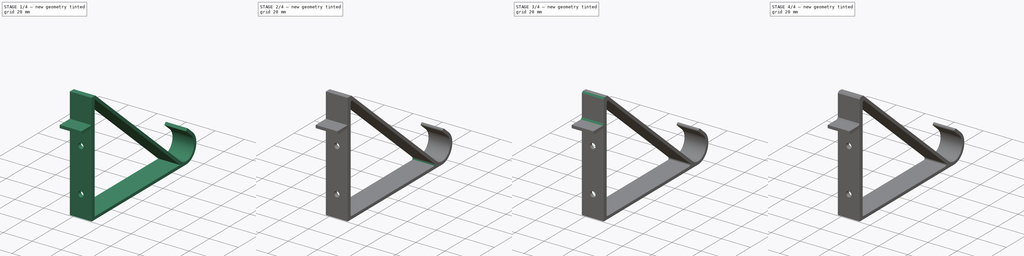
[diagram: build sequence overview — one tinted view per stage of 4, left to right]
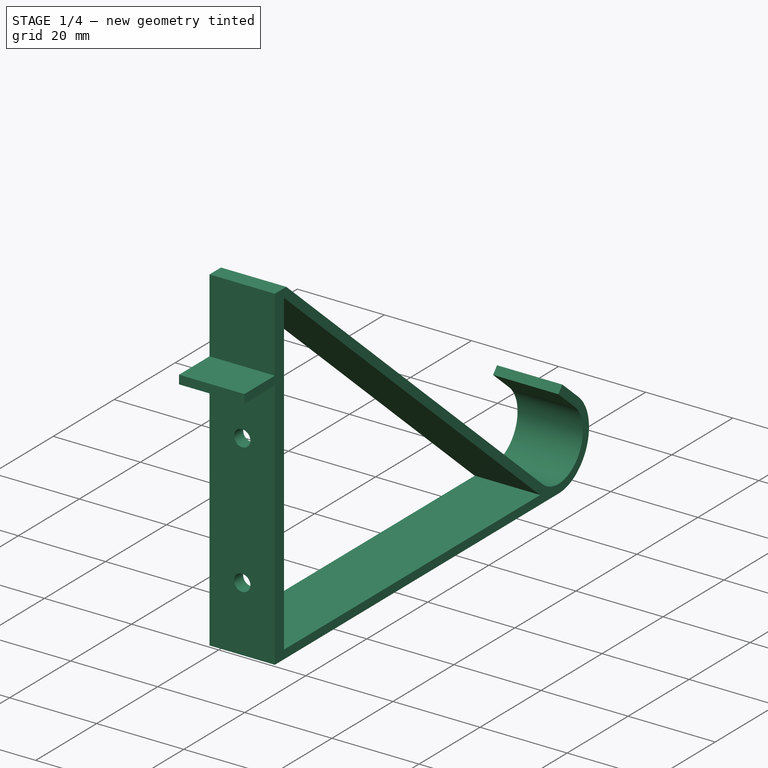
[diagram: stage 1 of 4 — iso view after this stage's code; geometry added in this stage tinted green]
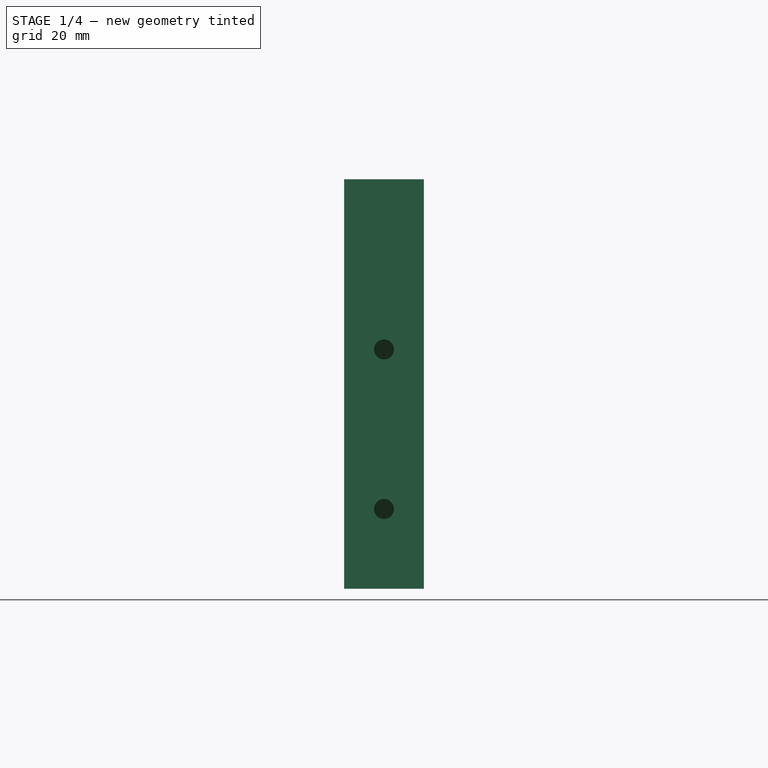
[diagram: stage 1 of 4 — front view after this stage's code; geometry added in this stage tinted green]
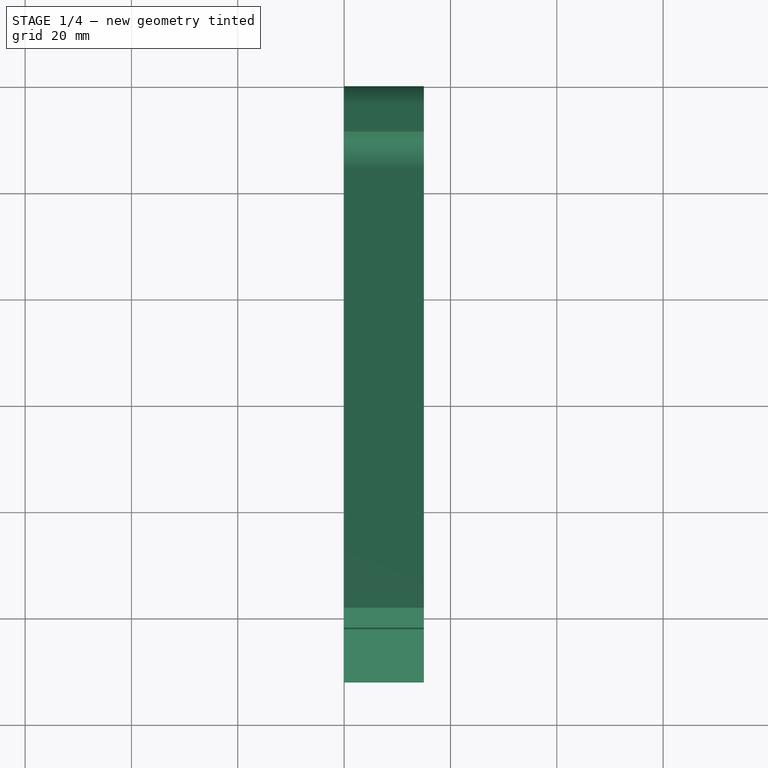
[diagram: stage 1 of 4 — top view after this stage's code; geometry added in this stage tinted green]
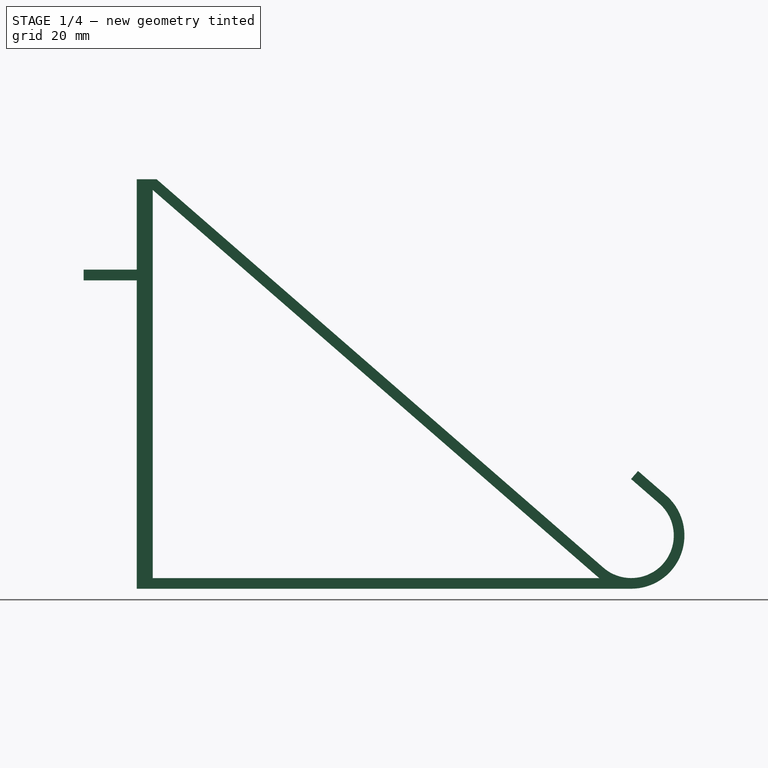
[diagram: stage 1 of 4 — right view after this stage's code; geometry added in this stage tinted green]
FCSTD DOCUMENT  (FreeCAD 0.21R33771 (Git))
Label: wireless-keyboard-holder
License: All rights reserved
LicenseURL: http://en.wikipedia.org/wiki/All_rights_reserved
objects: PartDesign::Chamfer×4, PartDesign::Fillet×3, Sketcher::SketchObject×2, PartDesign::Pad×1, PartDesign::Pocket×1, PartDesign::Body×1
note: 21 computed .brp shape members not serialized (recipe doc carries the construction recipe); baked Part::Feature solids carry a one-line shape summary decoded from their .brp

FEATURE [Sketcher::SketchObject] Sketch
  FullyConstrained = false
  MapMode = 5
  Placement = pos=(0,0,0) rot=(0.57735,0.57735,0.57735;2.0944rad)
  Support = -> [YZ_Plane]
  sketch-geometry (26):
    g0: LineSegment StartX=-3 StartY=58 StartZ=0 EndX=-3 EndY=0 EndZ=0
    g1: LineSegment StartX=-3 StartY=0 StartZ=0 EndX=0 EndY=0 EndZ=0
    g2: LineSegment StartX=-3 StartY=58 StartZ=0 EndX=-13 EndY=58 EndZ=0
    g3: LineSegment StartX=-13 StartY=60 StartZ=0 EndX=-3 EndY=60 EndZ=0
    g4: LineSegment StartX=-13 StartY=58 StartZ=0 EndX=-13 EndY=60 EndZ=0
    g5: LineSegment StartX=0 StartY=0 StartZ=0 EndX=0 EndY=75 EndZ=0
    g6: LineSegment StartX=0.747881 StartY=77 StartZ=0 EndX=84.7509 EndY=3.96284 EndZ=0
    g7: LineSegment StartX=89.9665 StartY=20.6301 StartZ=0 EndX=95.249 EndY=16.0372 EndZ=0
    g8: ArcOfCircle CenterX=90 CenterY=10 CenterZ=0 NormalX=0 NormalY=0 NormalZ=1 AngleXU=0 Radius=8 StartAngle=3.99671 EndAngle=7.1383
    g9: GeomPoint X=96.0371 Y=4.75094 Z=0
    g10: LineSegment StartX=90 StartY=10 StartZ=0 EndX=96.0371 EndY=4.75094 EndZ=0
    g11: LineSegment StartX=96.0371 StartY=4.75094 StartZ=0 EndX=101.286 EndY=10.7881 EndZ=0
    g12: LineSegment StartX=95.249 StartY=16.0372 StartZ=0 EndX=101.286 EndY=10.7881 EndZ=0
    g13: LineSegment StartX=89.9665 StartY=20.6301 StartZ=0 EndX=91.2788 EndY=22.1394 EndZ=0
    g14: ArcOfCircle CenterX=90 CenterY=10 CenterZ=0 NormalX=0 NormalY=0 NormalZ=1 AngleXU=0 Radius=10 StartAngle=3.99671 EndAngle=7.1383
    g15: LineSegment StartX=91.2788 StartY=22.1394 StartZ=0 EndX=96.5613 EndY=17.5465 EndZ=0
    g16: LineSegment StartX=83.4386 StartY=2.45355 StartZ=0 EndX=0 EndY=75 EndZ=0
    g17: LineSegment StartX=0 StartY=0 StartZ=0 EndX=150 EndY=0 EndZ=0
    g18: LineSegment StartX=-3 StartY=60 StartZ=0 EndX=-3 EndY=77 EndZ=0
    g19: LineSegment StartX=-3 StartY=77 StartZ=0 EndX=0.747881 EndY=77 EndZ=0
    g20: GeomPoint X=90 Y=5.78826e-11 Z=0
    g21: LineSegment StartX=0 StartY=5.78826e-11 StartZ=0 EndX=90 EndY=5.78826e-11 EndZ=0
    g22: LineSegment StartX=0 StartY=75 StartZ=0 EndX=0 EndY=2 EndZ=0
    g23: LineSegment StartX=0 StartY=2 StartZ=0 EndX=84 EndY=2 EndZ=0
    g24: ArcOfCircle CenterX=90 CenterY=10 CenterZ=0 NormalX=0 NormalY=0 NormalZ=1 AngleXU=0 Radius=10 StartAngle=4.71239 EndAngle=7.1383
    g25: LineSegment StartX=83.4386 StartY=2.45355 StartZ=0 EndX=84 EndY=2 EndZ=0
  constraints (66):
    c: Vertical(g0)
    c: Distance(g0) = 58
    c: Coincident(g1,g0)
    c: Horizontal(g1)
    c: Coincident(g2,g0)
    c: Horizontal(g2)
    c: Horizontal(g3)
    c: Coincident(g4,g2)
    c: Coincident(g4,g3)
    c: Vertical(g4)
    c: Distance(g4) = 2
    c: Coincident(g5,g1)
    c: Vertical(g5)
    c: Parallel(g6,g7)
    c: Tangent(g8,g7) = 1.5708
    c: Tangent(g8,g6) = -1.5708
    c: Distance(g6,g7) = 16
    c: PointOnObject(g9,g8)
    c: Coincident(g10,g8)
    c: Coincident(g10,g9)
    c: Parallel(g10,g7)
    c: Coincident(g11,g9)
    c: Tangent(g11,g8)
    c: Coincident(g12,g7)
    c: Coincident(g12,g11)
    c: Tangent(g12,g8)
    c: Distance(g11,g7) = 15
    c: Coincident(g13,g7)
    c: Perpendicular(g7,g13)
    c: Distance(g13) = 2
    c: Coincident(g14,g8)
    c: Coincident(g15,g13)
    c: Parallel(g15,g7)
    c: Tangent(g15,g14) = 1.5708
    c: Parallel(g16,g6)
    c: Tangent(g16,g14) = 1.5708
    c: Coincident(g17,g1)
    c: Horizontal(g17)
    c: Tangent(g17,g14)
    c: Coincident(g16,g5)
    c: Distance(g5) = 75
    c: Distance(g17) = 150
    c: Distance(g2) = 10
    c: Vertical(g3,g0)
    c: Coincident(g18,g3)
    c: Vertical(g18)
    c: Coincident(g19,g18)
    c: Horizontal(g19)
    c: DistanceX(g1,g1) = 3
    c: DistanceY(g5,g18) = 2
    c: Coincident(g1,g-1)
    c: Distance(g20,g1) = 90
    c: Coincident(g19,g6)
    c: Coincident(g22,g16)
    c: PointOnObject(g22,g5)
    c: Coincident(g23,g22)
    c: Horizontal(g23)
    c: Distance(g22,g1) = 2
    c: Coincident(g21,g20)
    c: Coincident(g24,g8)
    c: Coincident(g24,g15)
    c: PointOnObject(g23,g14)
    c: Coincident(g25,g16)
    c: Coincident(g25,g23)
    c: Coincident(g21,g24)
    c: Horizontal(g21)
FEATURE [PartDesign::Pad] Pad
  Direction = (1,-2e-16,3e-16)
  Length = 15
  Length2 = 10
  Placement = pos=(0,0,0) rot=(1,1,1;2.0944rad)
  Profile = -> Sketch
  ReferenceAxis = -> Sketch [N_Axis]
  Type = 0
FEATURE [Sketcher::SketchObject] Sketch001
  FullyConstrained = true
  MapMode = 5
  Placement = pos=(0,0,0) rot=(1,0,0;1.5708rad)
  Support = -> [XZ_Plane]
  sketch-geometry (4):
    g0: GeomPoint X=7.5 Y=15 Z=0
    g1: GeomPoint X=7.5 Y=45 Z=0
    g2: Circle CenterX=7.5 CenterY=15 CenterZ=0 NormalX=0 NormalY=0 NormalZ=1 AngleXU=0 Radius=1.875
    g3: Circle CenterX=7.5 CenterY=45 CenterZ=0 NormalX=0 NormalY=0 NormalZ=1 AngleXU=0 Radius=1.875
  constraints (8):
    c: DistanceX(g-1,g0) = 7.5
    c: DistanceY(g-1,g0) = 15
    c: Vertical(g1,g0)
    c: DistanceY(g-1,g1) = 45
    c: Coincident(g2,g0)
    c: Coincident(g3,g1)
    c: Equal(g2,g3)
    c: Diameter(g2) = 3.75
FEATURE [PartDesign::Pocket] Pocket
  BaseFeature = -> Pad
  Direction = (0,1,2e-16)
  Length = 5
  Length2 = 5
  Placement = pos=(0,0,0) rot=(1,1,1;2.0944rad)
  Profile = -> Sketch001
  ReferenceAxis = -> Sketch001 [N_Axis]
  Reversed = true
  Type = 1
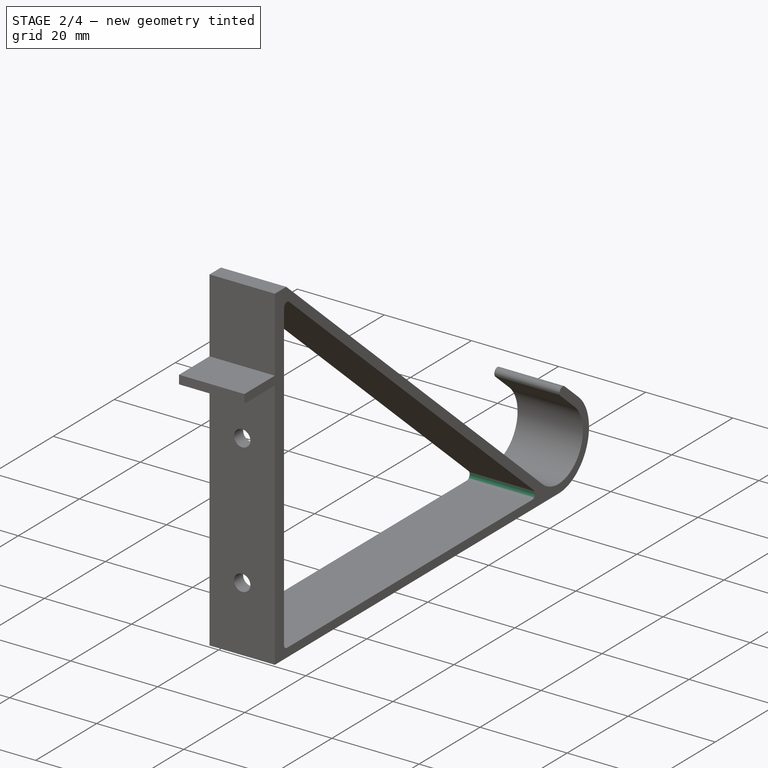
[diagram: stage 2 of 4 — iso view after this stage's code; geometry added in this stage tinted green]
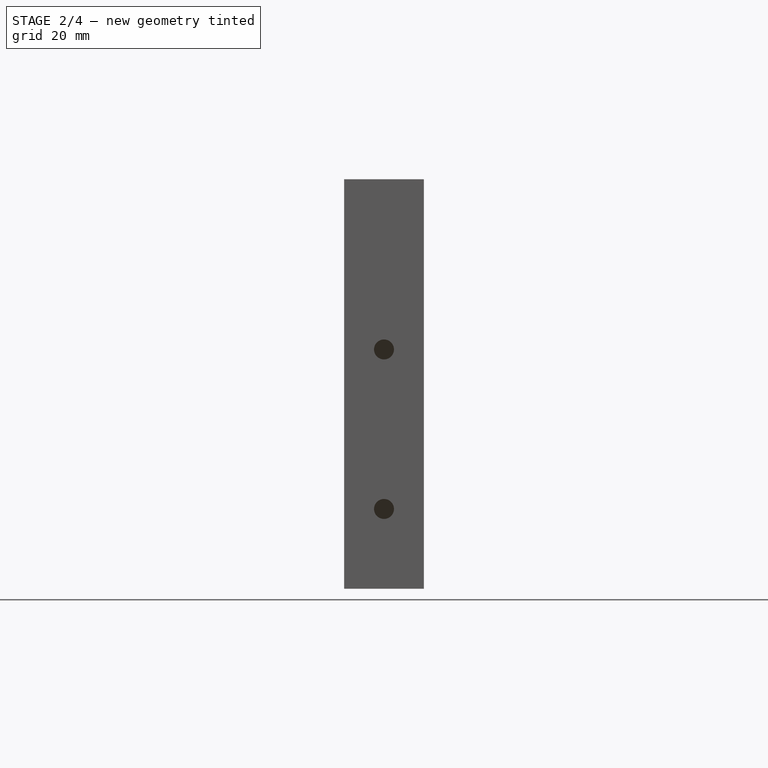
[diagram: stage 2 of 4 — front view after this stage's code; geometry added in this stage tinted green]
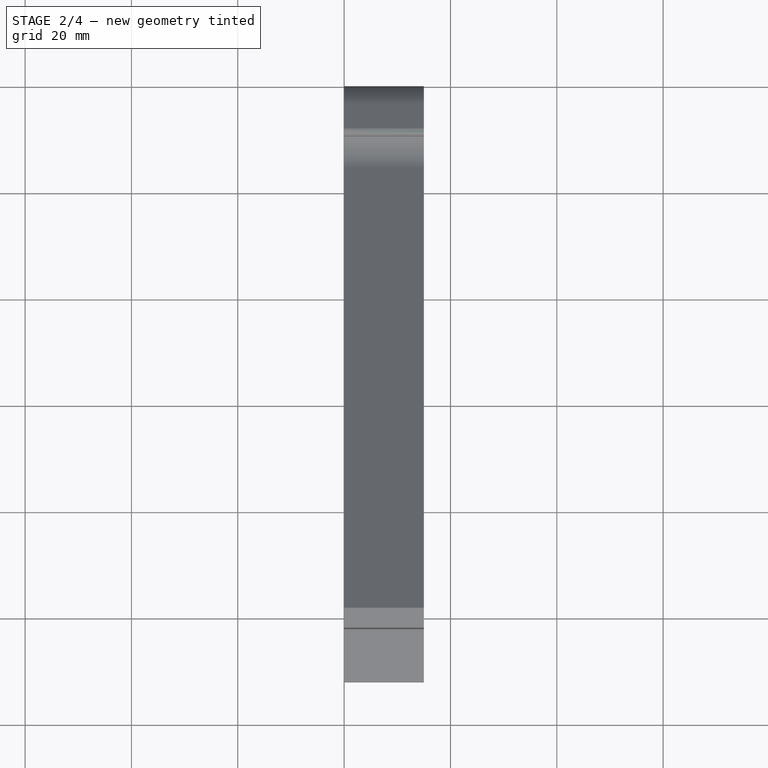
[diagram: stage 2 of 4 — top view after this stage's code; geometry added in this stage tinted green]
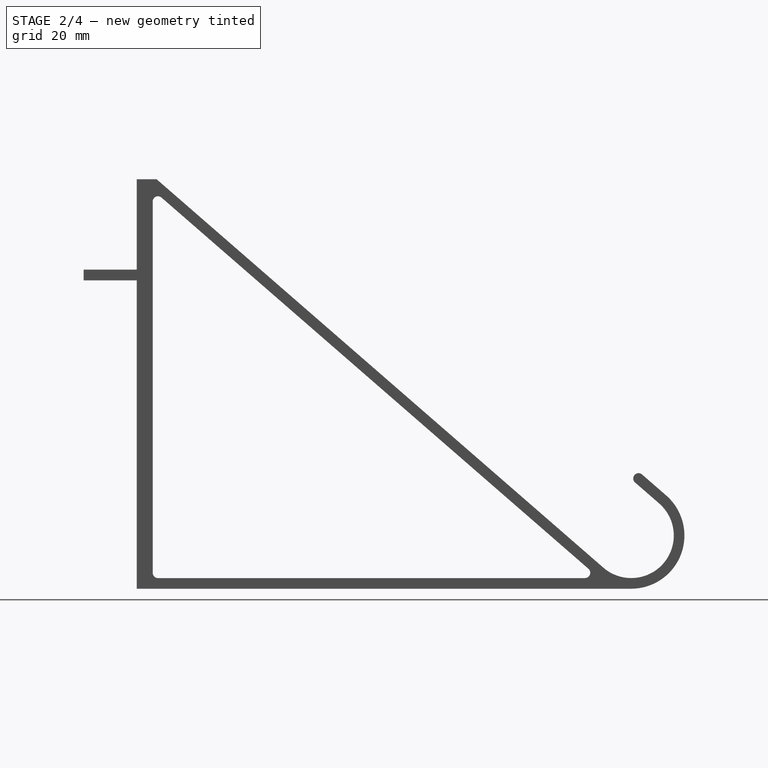
[diagram: stage 2 of 4 — right view after this stage's code; geometry added in this stage tinted green]
FEATURE [PartDesign::Fillet] Fillet
  Base = -> Pocket [Edge58,Edge54,Edge55]
  BaseFeature = -> Pocket
  Placement = pos=(0,0,0) rot=(1,1,1;2.0944rad)
  Radius = 1
  SupportTransform = false
  UseAllEdges = false
FEATURE [PartDesign::Fillet] Fillet001
  Base = -> Fillet [Edge52,Edge50]
  BaseFeature = -> Fillet
  Placement = pos=(0,0,0) rot=(1,1,1;2.0944rad)
  Radius = 0.99
  SupportTransform = false
  UseAllEdges = false
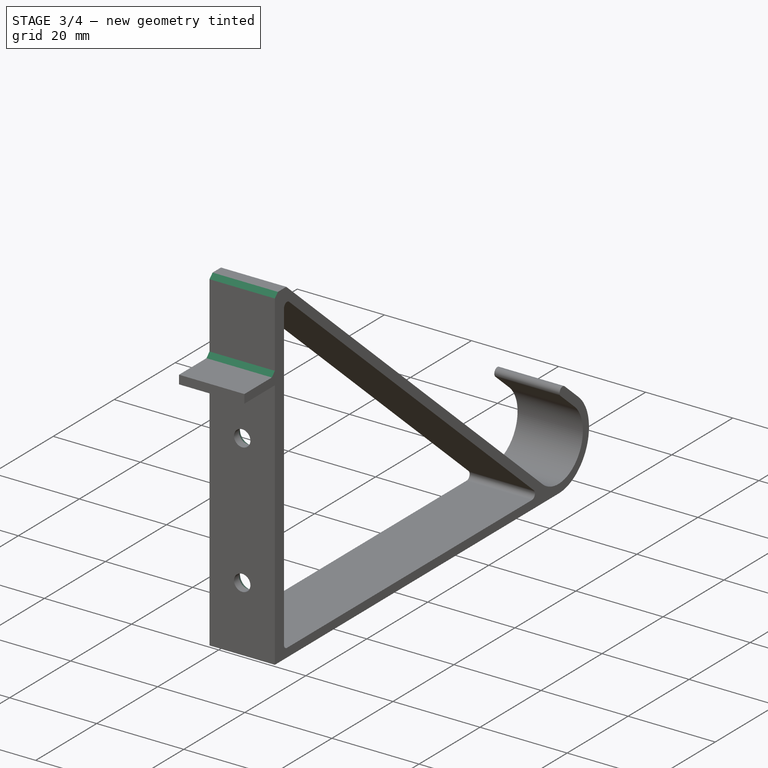
[diagram: stage 3 of 4 — iso view after this stage's code; geometry added in this stage tinted green]
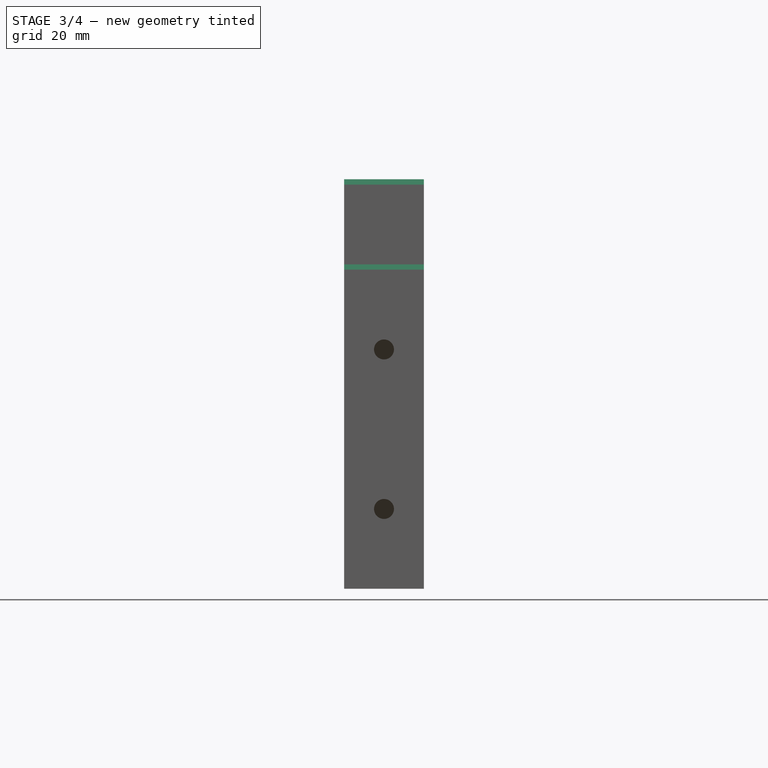
[diagram: stage 3 of 4 — front view after this stage's code; geometry added in this stage tinted green]
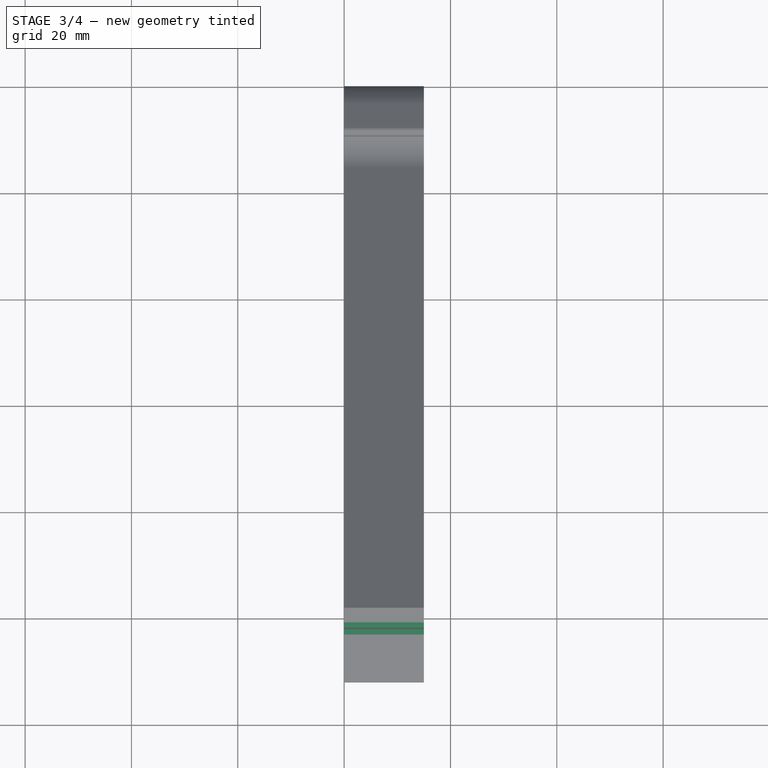
[diagram: stage 3 of 4 — top view after this stage's code; geometry added in this stage tinted green]
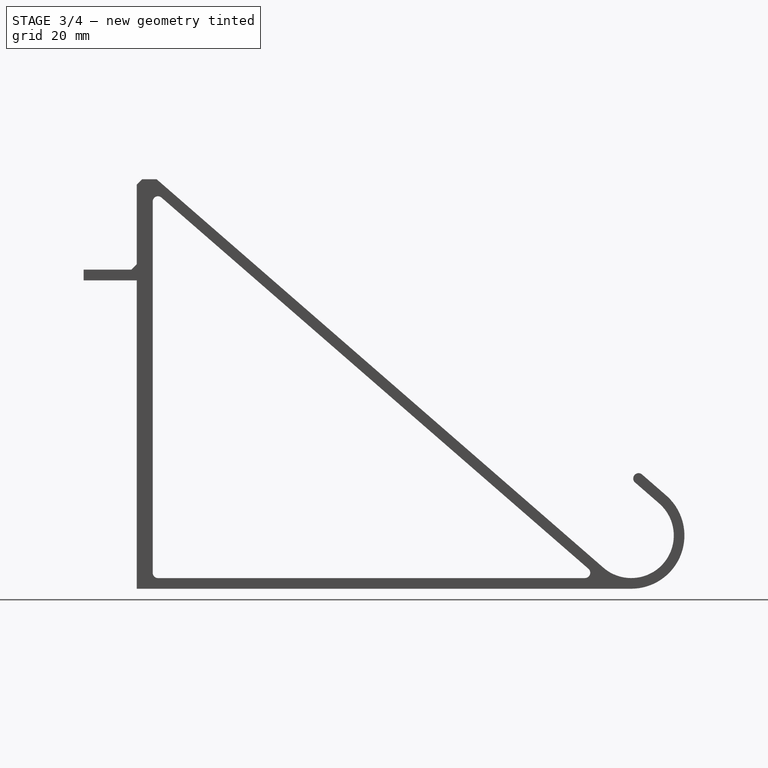
[diagram: stage 3 of 4 — right view after this stage's code; geometry added in this stage tinted green]
FEATURE [PartDesign::Chamfer] Chamfer
  Angle = 45
  Base = -> Fillet001 [Edge52]
  BaseFeature = -> Fillet001
  ChamferType = 0
  FlipDirection = false
  Placement = pos=(0,0,0) rot=(1,1,1;2.0944rad)
  Size = 1
  Size2 = 1
  SupportTransform = false
  UseAllEdges = false
FEATURE [PartDesign::Chamfer] Chamfer001
  Angle = 45
  Base = -> Chamfer [Edge31]
  BaseFeature = -> Chamfer
  ChamferType = 0
  FlipDirection = false
  Placement = pos=(0,0,0) rot=(1,1,1;2.0944rad)
  Size = 1
  Size2 = 1
  SupportTransform = false
  UseAllEdges = false
FEATURE [PartDesign::Chamfer] Chamfer003
  Angle = 60
  Base = -> Chamfer001 [Edge74,Edge75]
  BaseFeature = -> Chamfer001
  ChamferType = 2
  FlipDirection = false
  Placement = pos=(0,0,0) rot=(1,1,1;2.0944rad)
  Size = 0.75
  Size2 = 1
  SupportTransform = false
  UseAllEdges = false
FEATURE [PartDesign::Body] Body
  Group = -> [Sketch,Pad,Sketch001,Pocket,Fillet,Fillet001,Chamfer,Chamfer001,Fillet002,Chamfer002,Chamfer003]
  Origin = -> Origin
  Tip = -> Chamfer003
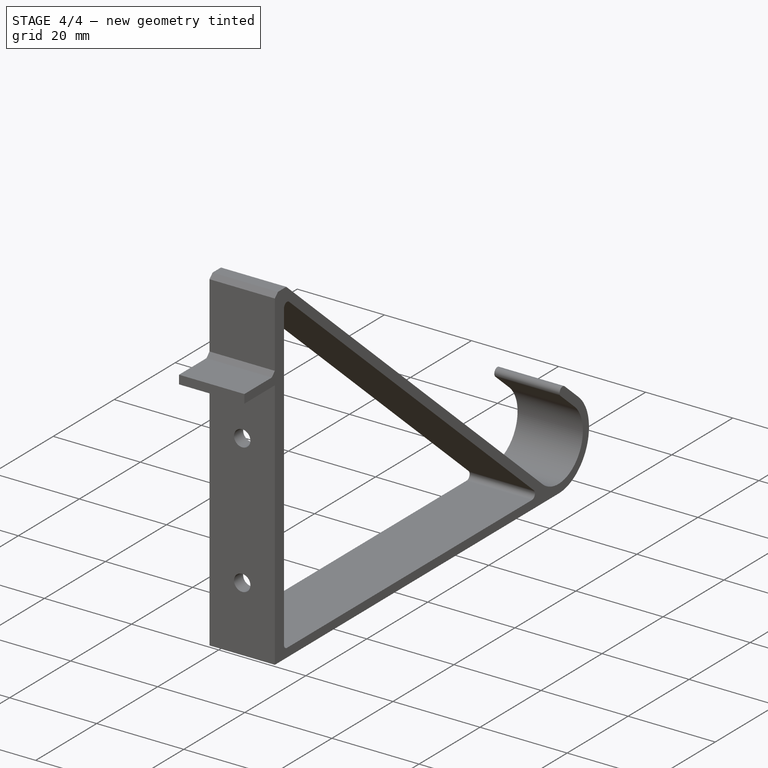
[diagram: stage 4 of 4 — iso view after this stage's code; geometry added in this stage tinted green]
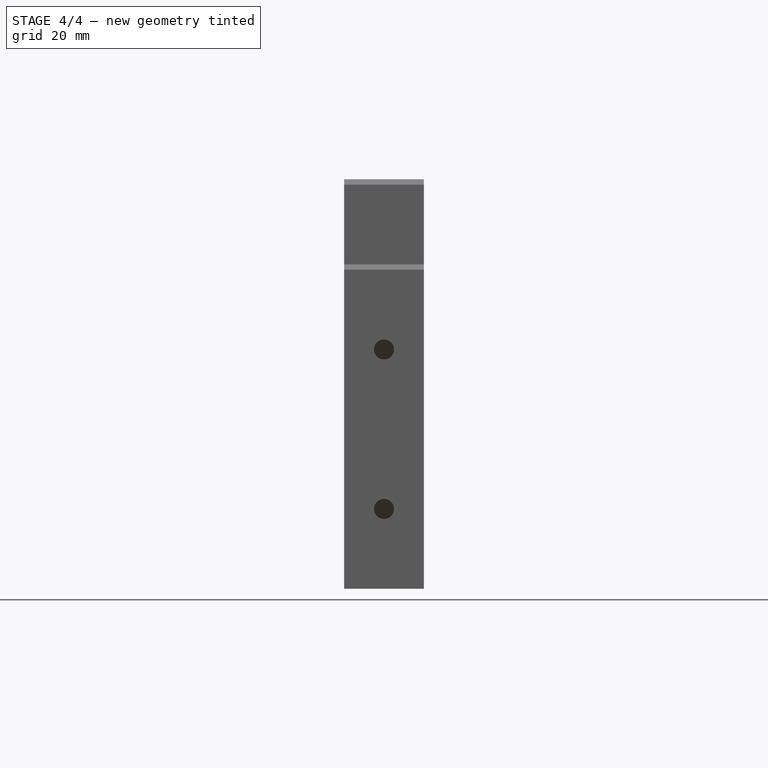
[diagram: stage 4 of 4 — front view after this stage's code; geometry added in this stage tinted green]
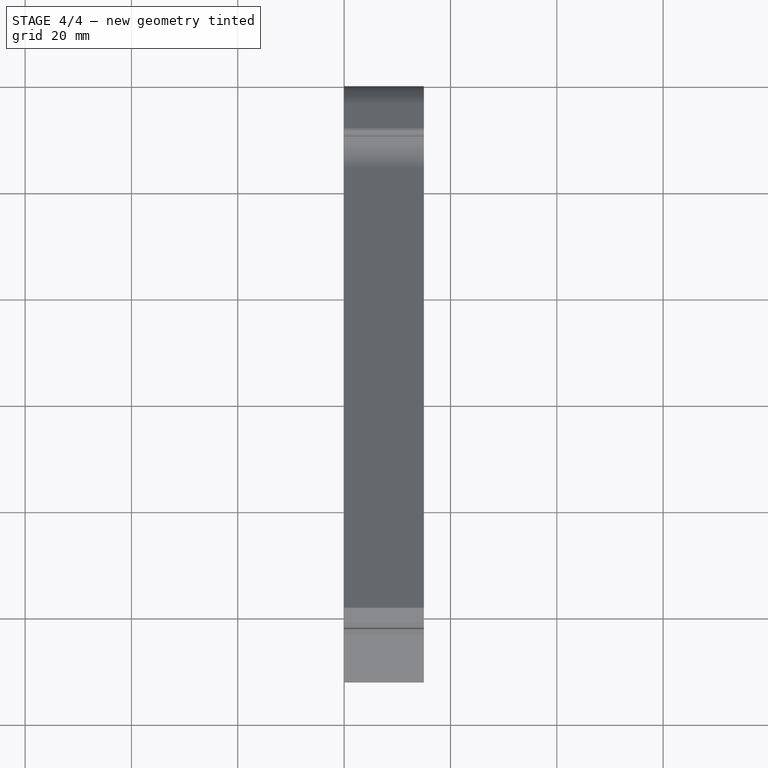
[diagram: stage 4 of 4 — top view after this stage's code; geometry added in this stage tinted green]
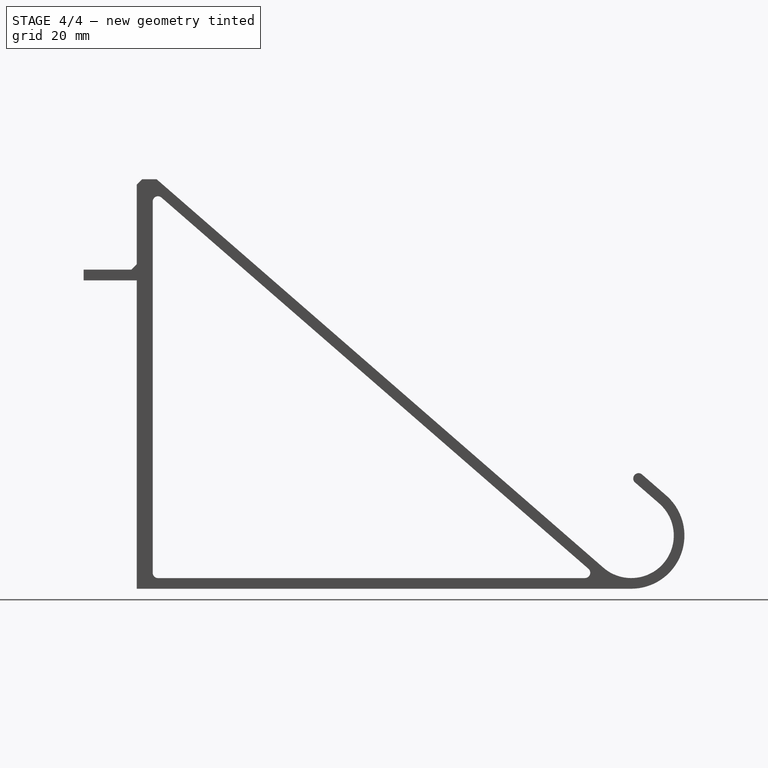
[diagram: stage 4 of 4 — right view after this stage's code; geometry added in this stage tinted green]
FEATURE [PartDesign::Fillet] Fillet002
  Base = -> Chamfer001 [Edge36,Edge32]
  BaseFeature = -> Chamfer001
  Placement = pos=(0,0,0) rot=(1,1,1;2.0944rad)
  Radius = 0.99
  SupportTransform = false
  UseAllEdges = false
FEATURE [PartDesign::Chamfer] Chamfer002
  Angle = 45
  Base = -> Fillet002 [Edge47]
  BaseFeature = -> Fillet002
  ChamferType = 0
  FlipDirection = false
  Placement = pos=(0,0,0) rot=(1,1,1;2.0944rad)
  Size = 1
  Size2 = 1
  SupportTransform = false
  UseAllEdges = false
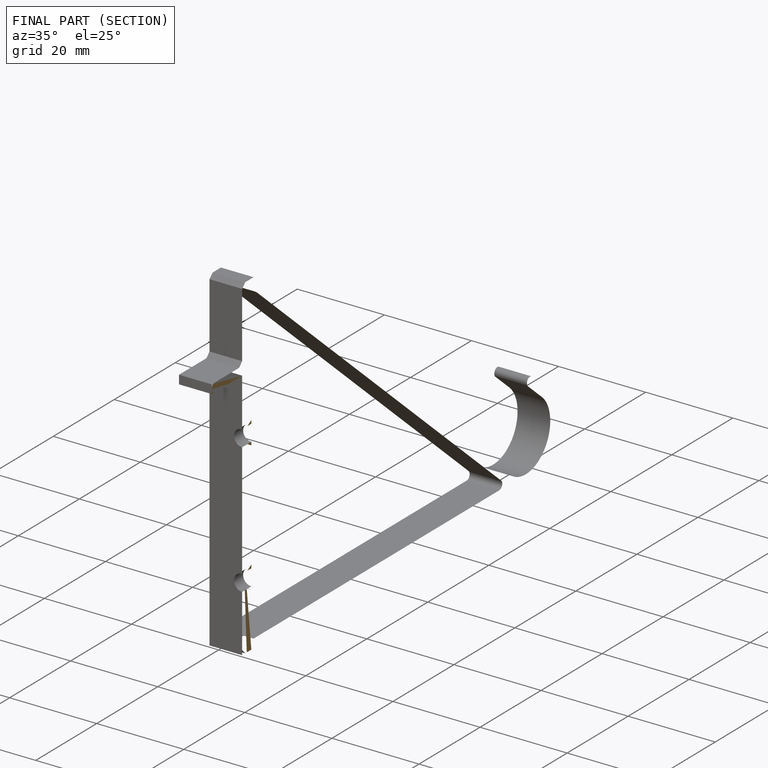
[diagram: finished part — half-section view (interior)]
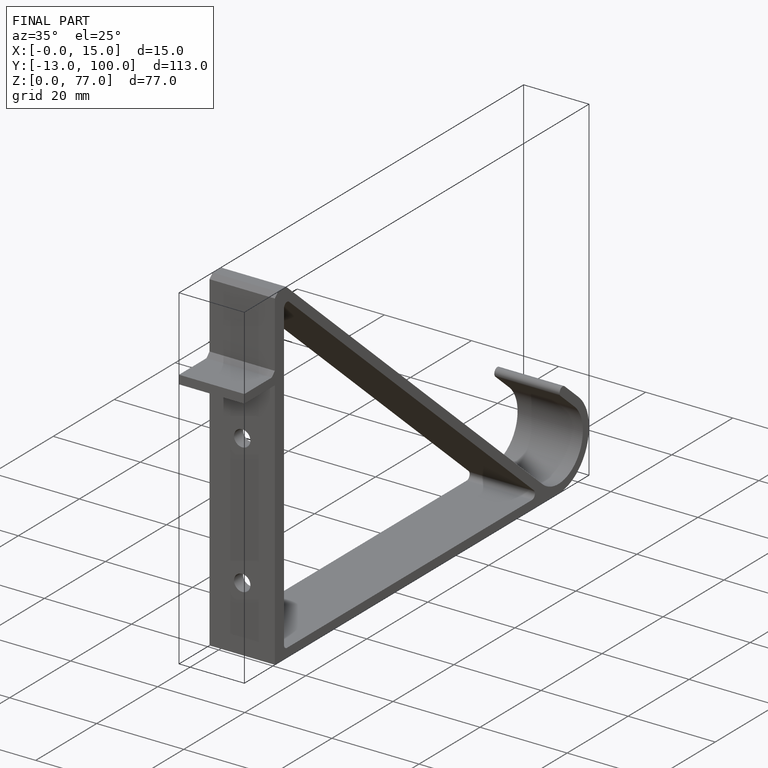
[diagram: finished part — iso view with bounding-box wireframe]
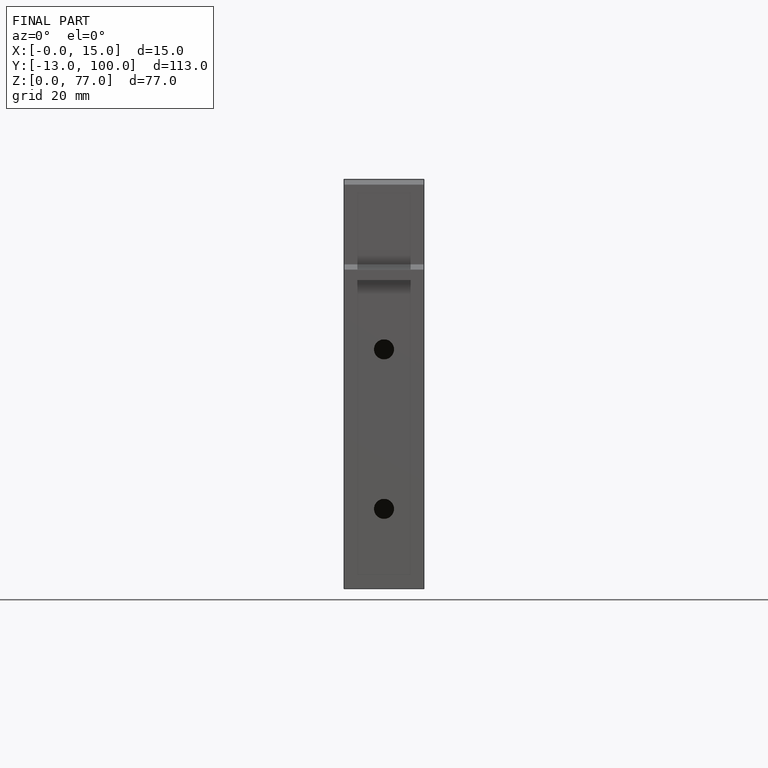
[diagram: finished part — front view with bounding-box wireframe]
